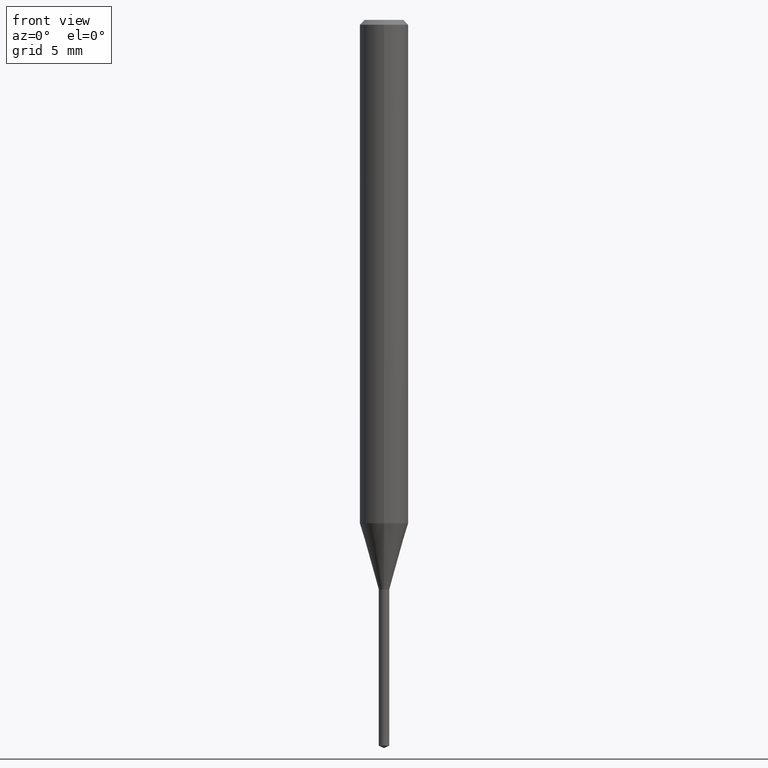
[diagram: clean part render]
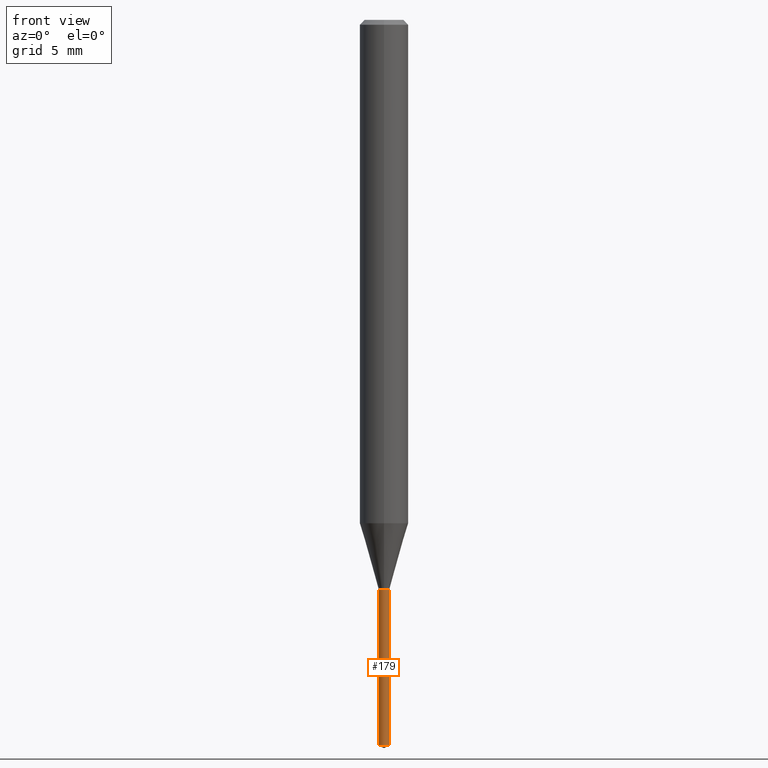
[diagram: same view with one face highlighted and labeled with its STEP entity id]
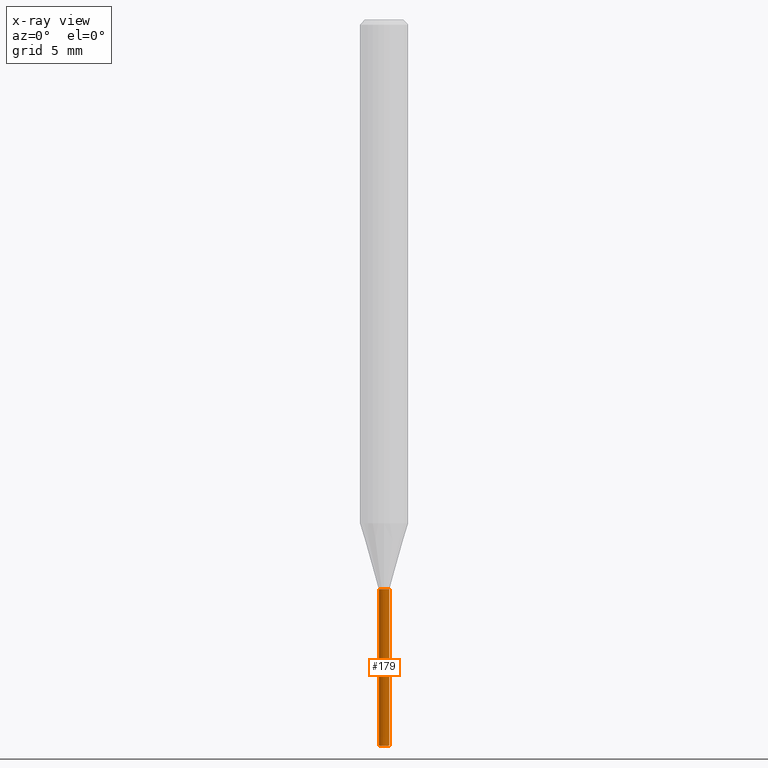
[diagram: x-ray of the same camera — body ghosted, the highlighted face saturated]
A machine part, front view. The second image highlights one B-rep face of the part: STEP entity #179.
The next image is the same camera in x-ray: the body ghosted, the highlighted face saturated — about 0% of this face is hidden behind the body in this view.
In plain terms, the highlighted conical surface has half-angle 0.006 deg.
Its self-contained STEP definition (entity closure, byte-faithful):
#97=VERTEX_POINT('',#232);
#105=EDGE_CURVE('',#141,#97,#241,.T.);
#111=VERTEX_POINT('',#247);
#127=EDGE_CURVE('',#111,#97,#265,.T.);
#135=EDGE_CURVE('',#151,#141,#274,.T.);
#141=VERTEX_POINT('',#280);
#151=VERTEX_POINT('',#291);
#173=EDGE_CURVE('',#111,#151,#315,.T.);
#179=ADVANCED_FACE('',(#323),#324,.T.);
#232=CARTESIAN_POINT('',(-0.325,0.0,-44.84845001));
#241=LINE('',#389,#390);
#247=CARTESIAN_POINT('',(0.325,3.97997064992273E-017,-44.84845001));
#265=CIRCLE('',#424,0.325);
#274=CIRCLE('',#434,0.326);
#280=CARTESIAN_POINT('',(-0.326,0.0,-35.2));
#291=CARTESIAN_POINT('',(0.326,3.99221671346095E-017,-35.2));
#315=LINE('',#488,#489);
#323=FACE_OUTER_BOUND('',#497,.T.);
#324=CONICAL_SURFACE('',#498,0.3255,0.000103643589942727);
#389=CARTESIAN_POINT('',(-0.3255,-3.98609368169184E-017,-40.024225005));
#390=VECTOR('',#553,1.0);
#424=AXIS2_PLACEMENT_3D('',#575,#576,#577);
#434=AXIS2_PLACEMENT_3D('',#586,#587,#588);
#488=CARTESIAN_POINT('',(0.3255,3.98609368169184E-017,-40.024225005));
#489=VECTOR('',#633,1.0);
#497=EDGE_LOOP('',(#649,#650,#651,#652));
#498=AXIS2_PLACEMENT_3D('',#653,#654,#655);
#553=DIRECTION('',(0.00010364358975717,1.2692259854959E-020,-0.999999994629003));
#575=CARTESIAN_POINT('',(0.0,0.0,-44.84845001));
#576=DIRECTION('',(0.0,0.0,-1.0));
#577=DIRECTION('',(-1.0,0.0,0.0));
#586=CARTESIAN_POINT('',(0.0,0.0,-35.2));
#587=DIRECTION('',(0.0,0.0,-1.0));
#588=DIRECTION('',(-1.0,0.0,0.0));
#633=DIRECTION('',(0.00010364358975717,1.2692259854959E-020,0.999999994629003));
#649=ORIENTED_EDGE('',*,*,#105,.T.);
#650=ORIENTED_EDGE('',*,*,#127,.F.);
#651=ORIENTED_EDGE('',*,*,#173,.T.);
#652=ORIENTED_EDGE('',*,*,#135,.T.);
#653=CARTESIAN_POINT('',(0.0,0.0,-40.024225005));
#654=DIRECTION('',(-0.0,-0.0,1.0));
#655=DIRECTION('',(-1.0,0.0,0.0));